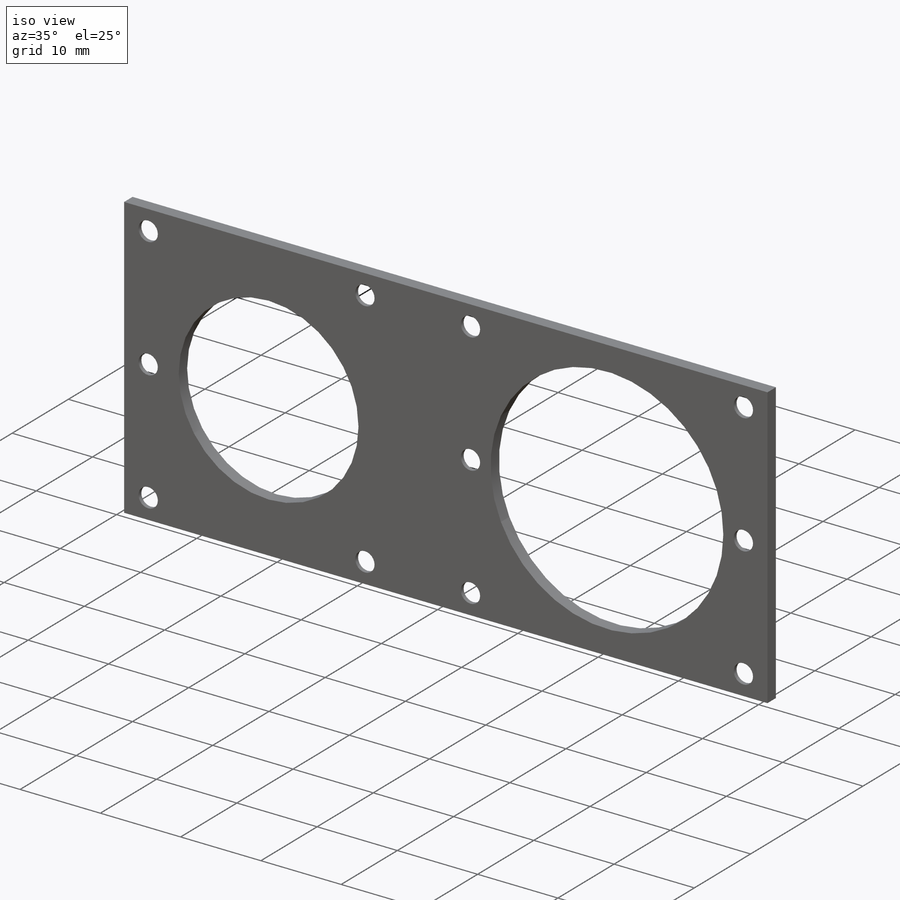
[diagram: iso view]
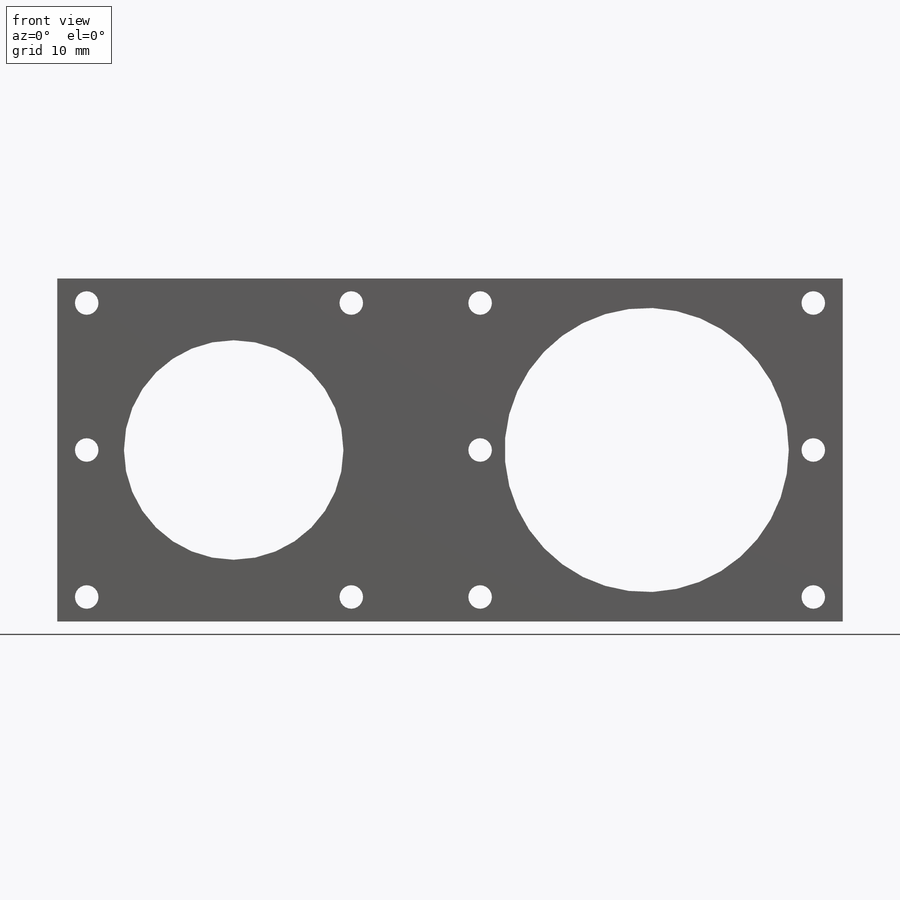
[diagram: front view]
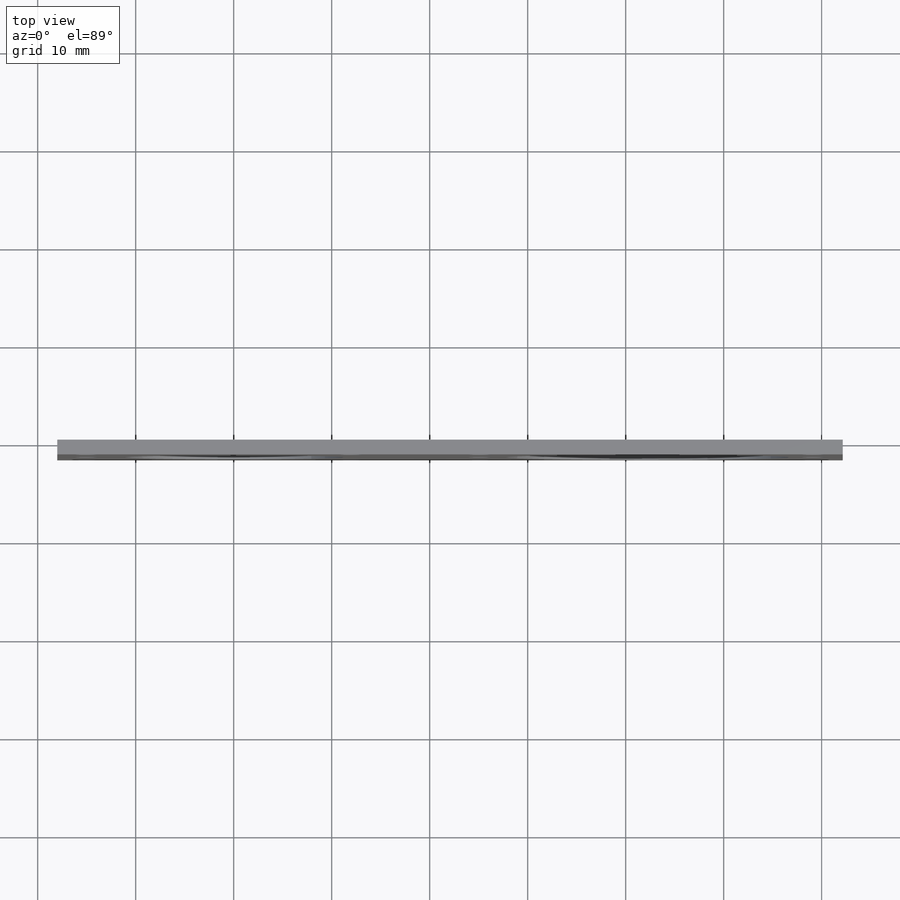
[diagram: top view]
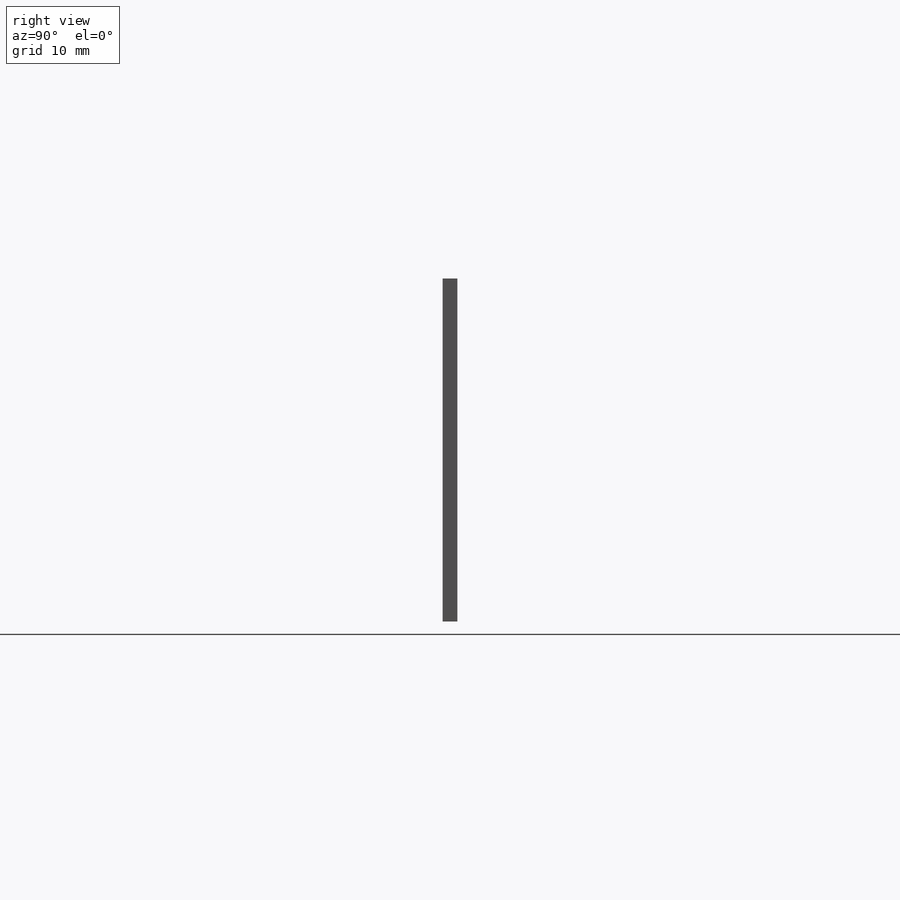
[diagram: right view]
SOLIDWORKS PART (.sldprt)
format: sldprt  version: not decoded by parser v0  size: 364,544 bytes
history: native  units: mm
features: sketch x11, cut_extrude x3, hole x3, extrude x2, material x1 (+12 scaffold rows collapsed)
feature tree (32):
  scaffold x12  (default folders/planes/origin — collapsed)
  material  "Hexcel AS4C (3000 Filaments)"
  sketch  "Sketch1"  dims[D1=115.3mm D2=35.0mm]
  extrude  "Boss-Extrude1"  Depth=1.5mm
  sketch  "Sketch2"  dims[D1=22.4mm]
  cut_extrude  "Cut-Extrude1"  [1 undecoded]
  sketch  "Sketch3"  dims[D1=29.0mm D2=42.15mm]
  cut_extrude  "Cut-Extrude2"  [1 undecoded]
  sketch  "Sketch4"  dims[D1=18.0mm]
  cut_extrude  "Cut-Extrude3"  Depth=10mm
  sketch  "Sketch11"
  extrude  "Boss-Extrude2"  Depth=4.5mm
  hole  "M2 Clearance Hole1"  Diameter=2.4mm Depth=6mm
  sketch  "Sketch8"  dims[c1.D1=30.0mm c1.D2=42.0mm c2.D1=30.0mm c2.D2=3.0mm c2.D3=34.0mm]
  sketch  "Sketch7"  dims[hole-wizard template sketch: 47 standard entries collapsed; hole parameters kept: c15.Hole Depth=6.0mm c15.D3=~14.816244mm c15.Drill Angle=118.0deg]
  hole  "M2 Clearance Hole2"  Diameter=2.4mm Depth=12mm
  sketch  "Sketch14"  dims[c1.D1=25.0mm c1.D2=27.0mm c2.D1=27.0mm]
  sketch  "Sketch13"  dims[hole-wizard template sketch: 49 standard entries collapsed; hole parameters kept: c15.Drill Angle=180.0deg]
  hole  "CSK for M2 Countersunk Flat Head Screw1"  Diameter=2.2mm Depth=1.5mm
  sketch  "Sketch10"
  sketch  "Sketch9"  dims[hole-wizard template sketch: 55 standard entries collapsed; hole parameters kept: c17.Thru Hole Depth=1.5mm c17.Near C'Sink Dia.=4.4mm c17.D4=~3.666174mm c17.Near C'Sink Angle=90.0deg]
decode coverage: 15 of 19 modeling features carry decoded parameters
note: ~ marks probable driven/reference dimensions
note: 2 parameter values undecoded
note: suppression state not decoded; provenance and decode notes live in map.json
